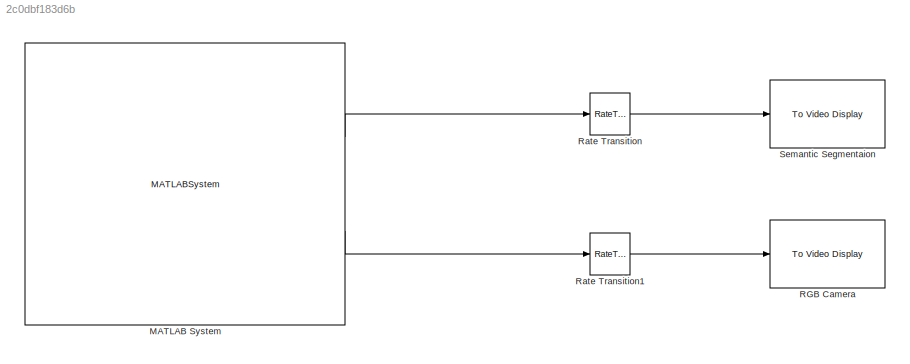
MODEL slx_2c0dbf183d6b
KIND model
CONFIG AbsTol = auto
CONFIG EnableMultiTasking = off
CONFIG FixedStep = auto
CONFIG MaxStep = auto
CONFIG MinStep = auto
CONFIG RelTol = 1e-3
CONFIG SampleTimeConstraint = Unconstrained
CONFIG Solver = VariableStepAuto
CONFIG SolverName = VariableStepAuto
CONFIG StartTime = 0.0
CONFIG StopTime = inf
BLOCK [MATLABSystem] MATLAB System
  MaskDisplay = disp('CarlaEnvironment');\nport_label('output',1,'SEMANTIC_SEGMENTATION_RGB');\nport_label('output',2,'RGB');
  MaskType = CarlaEnvironment
  Ports = [0, 2]
  SimulateUsing = Interpreted execution
  System = CarlaEnvironment
BLOCK [Reference] RGB Camera  REF=visionsinks/To Video Display
  Ports = [1]
  SourceBlock = visionsinks/To Video Display
  SourceProductBaseCode = VP
  SourceProductName = Computer Vision Toolbox
  SourceType = To Video Display
BLOCK [RateTransition] Rate Transition
  OutPortSampleTime = .1
BLOCK [RateTransition] Rate Transition1
  OutPortSampleTime = .1
BLOCK [Reference] Semantic Segmentaion  REF=visionsinks/To Video Display
  Ports = [1]
  SourceBlock = visionsinks/To Video Display
  SourceProductBaseCode = VP
  SourceProductName = Computer Vision Toolbox
  SourceType = To Video Display
LINE MATLAB System:1 -> Rate Transition:1
LINE MATLAB System:2 -> Rate Transition1:1
LINE Rate Transition1:1 -> RGB Camera:1
LINE Rate Transition:1 -> Semantic Segmentaion:1
